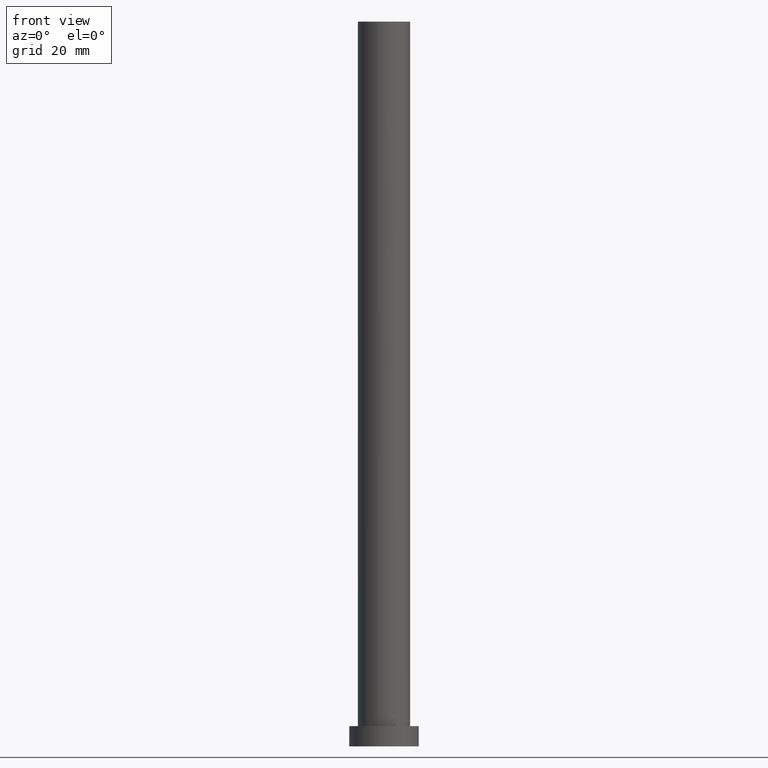
[diagram: clean part render]
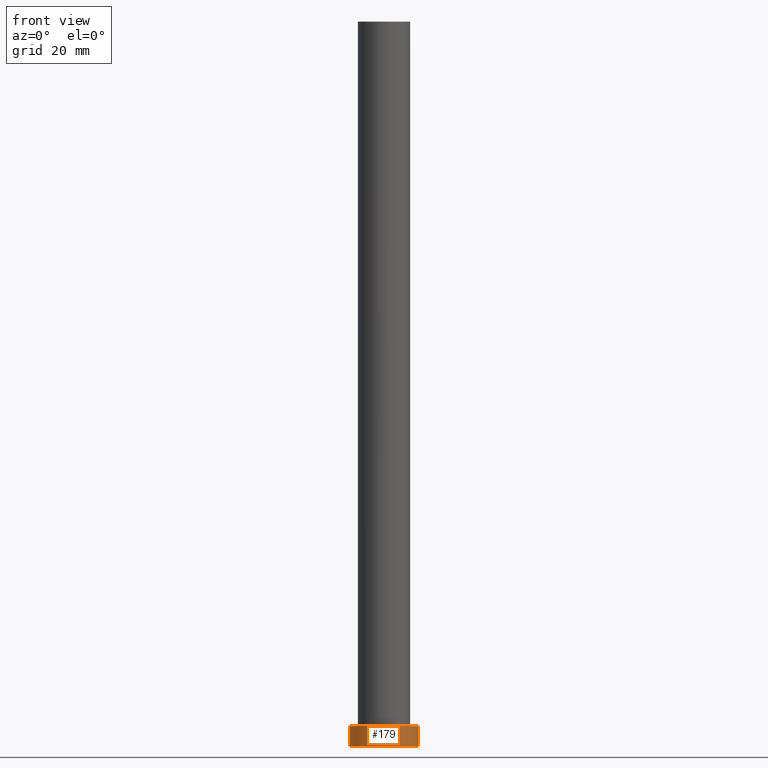
[diagram: same view with one face highlighted and labeled with its STEP entity id]
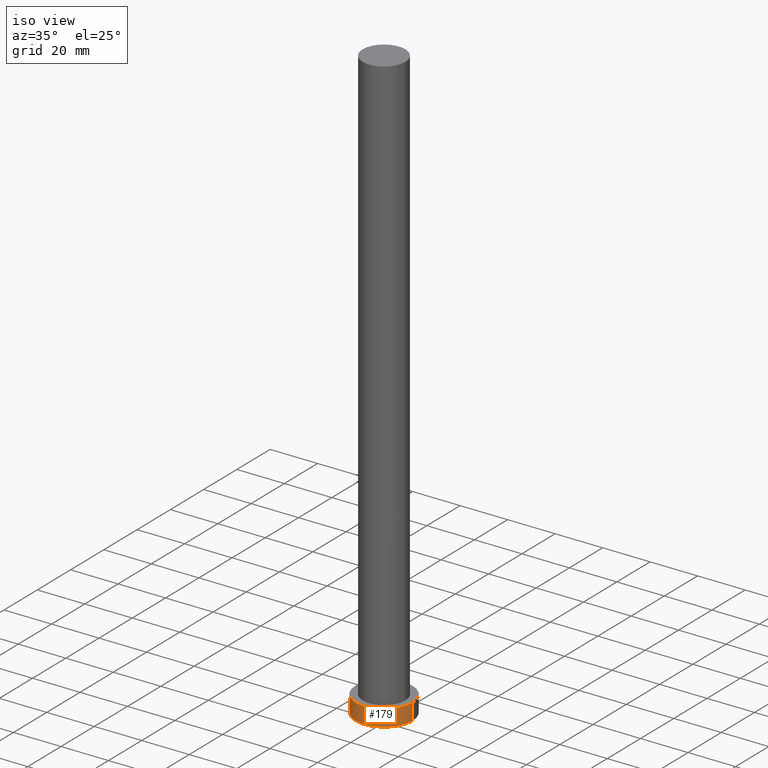
[diagram: same view with one face highlighted and labeled with its STEP entity id]
A machine part, front view. The second image highlights one B-rep face of the part: STEP entity #179.
A second angle (iso view) of the same face is appended — the face is thin or edge-on in the first view.
In plain terms, the highlighted cylindrical surface (edge-blend (fillet) strip) has radius 12 mm, axis along (-0, -0, -1).
Its self-contained STEP definition (entity closure, byte-faithful):
#5 = VECTOR ( 'NONE', #62, 1000.000000000000000 ) ;
#8 = ORIENTED_EDGE ( 'NONE', *, *, #99, .F. ) ;
#9 = EDGE_LOOP ( 'NONE', ( #8, #246, #138, #201 ) ) ;
#12 = CARTESIAN_POINT ( 'NONE',  ( 12.00000000000000178, 1.469576158976824144E-15, 0.000000000000000000 ) ) ;
#14 = LINE ( 'NONE', #247, #83 ) ;
#17 = EDGE_CURVE ( 'NONE', #226, #86, #181, .T. ) ;
#20 = VERTEX_POINT ( 'NONE', #59 ) ;
#31 = CARTESIAN_POINT ( 'NONE',  ( -12.00000000000000178, 0.000000000000000000, 7.000000000000000000 ) ) ;
#45 = CARTESIAN_POINT ( 'NONE',  ( 12.00000000000000178, 1.469576158976824144E-15, 7.000000000000000000 ) ) ;
#46 = FACE_OUTER_BOUND ( 'NONE', #9, .T. ) ;
#49 = CARTESIAN_POINT ( 'NONE',  ( 0.000000000000000000, 0.000000000000000000, 0.000000000000000000 ) ) ;
#52 = EDGE_CURVE ( 'NONE', #226, #20, #14, .T. ) ;
#57 = DIRECTION ( 'NONE',  ( 0.000000000000000000, 0.000000000000000000, 1.000000000000000000 ) ) ;
#59 = CARTESIAN_POINT ( 'NONE',  ( -12.00000000000000178, 0.000000000000000000, 0.000000000000000000 ) ) ;
#60 = DIRECTION ( 'NONE',  ( 1.000000000000000000, 0.000000000000000000, 0.000000000000000000 ) ) ;
#62 = DIRECTION ( 'NONE',  ( -0.000000000000000000, -0.000000000000000000, -1.000000000000000000 ) ) ;
#72 = DIRECTION ( 'NONE',  ( -0.000000000000000000, -0.000000000000000000, -1.000000000000000000 ) ) ;
#83 = VECTOR ( 'NONE', #211, 1000.000000000000000 ) ;
#86 = VERTEX_POINT ( 'NONE', #45 ) ;
#99 = EDGE_CURVE ( 'NONE', #86, #191, #163, .T. ) ;
#104 = DIRECTION ( 'NONE',  ( -1.000000000000000000, 0.000000000000000000, 0.000000000000000000 ) ) ;
#107 = AXIS2_PLACEMENT_3D ( 'NONE', #244, #57, #60 ) ;
#121 = EDGE_CURVE ( 'NONE', #20, #191, #148, .T. ) ;
#130 = AXIS2_PLACEMENT_3D ( 'NONE', #49, #232, #195 ) ;
#138 = ORIENTED_EDGE ( 'NONE', *, *, #52, .T. ) ;
#148 = CIRCLE ( 'NONE', #130, 12.00000000000000178 ) ;
#163 = LINE ( 'NONE', #245, #5 ) ;
#173 = CYLINDRICAL_SURFACE ( 'NONE', #206, 12.00000000000000178 ) ;
#179 = ADVANCED_FACE ( 'NONE', ( #46 ), #173, .T. ) ;
#181 = CIRCLE ( 'NONE', #107, 12.00000000000000178 ) ;
#191 = VERTEX_POINT ( 'NONE', #12 ) ;
#195 = DIRECTION ( 'NONE',  ( 1.000000000000000000, 0.000000000000000000, 0.000000000000000000 ) ) ;
#201 = ORIENTED_EDGE ( 'NONE', *, *, #121, .T. ) ;
#206 = AXIS2_PLACEMENT_3D ( 'NONE', #252, #72, #104 ) ;
#211 = DIRECTION ( 'NONE',  ( -0.000000000000000000, -0.000000000000000000, -1.000000000000000000 ) ) ;
#226 = VERTEX_POINT ( 'NONE', #31 ) ;
#232 = DIRECTION ( 'NONE',  ( 0.000000000000000000, 0.000000000000000000, 1.000000000000000000 ) ) ;
#244 = CARTESIAN_POINT ( 'NONE',  ( 0.000000000000000000, 0.000000000000000000, 7.000000000000000000 ) ) ;
#245 = CARTESIAN_POINT ( 'NONE',  ( 12.00000000000000178, 1.469576158976824144E-15, 7.000000000000000000 ) ) ;
#246 = ORIENTED_EDGE ( 'NONE', *, *, #17, .F. ) ;
#247 = CARTESIAN_POINT ( 'NONE',  ( -12.00000000000000178, 0.000000000000000000, 7.000000000000000000 ) ) ;
#252 = CARTESIAN_POINT ( 'NONE',  ( 0.000000000000000000, 0.000000000000000000, 7.000000000000000000 ) ) ;